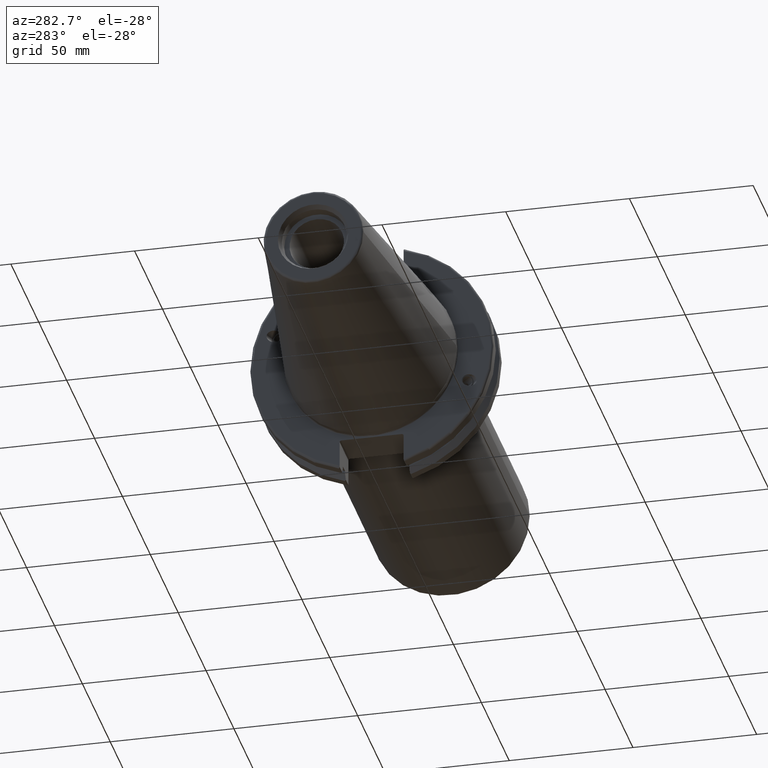
[diagram: clean part render]
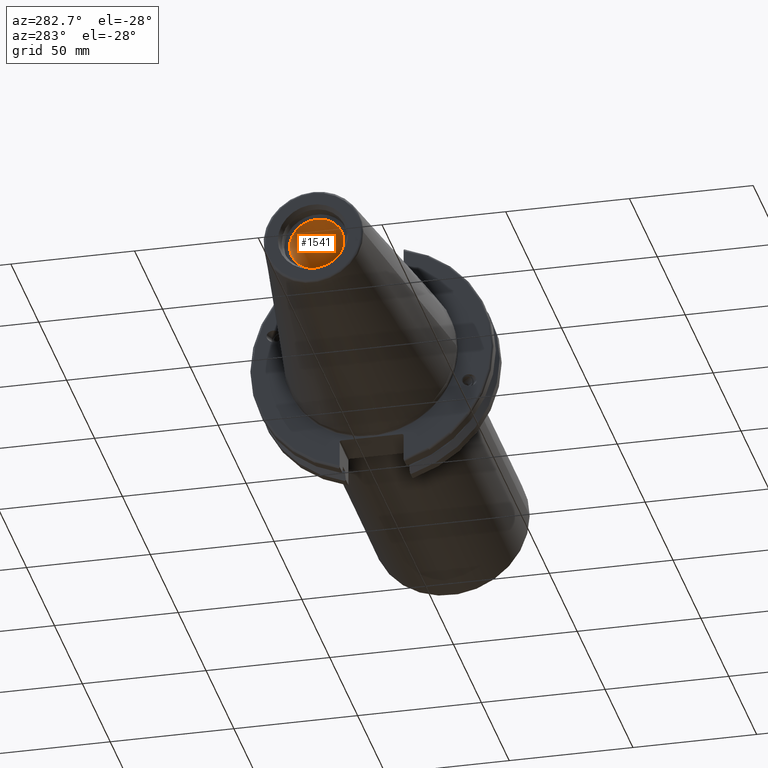
[diagram: same view with one face highlighted and labeled with its STEP entity id]
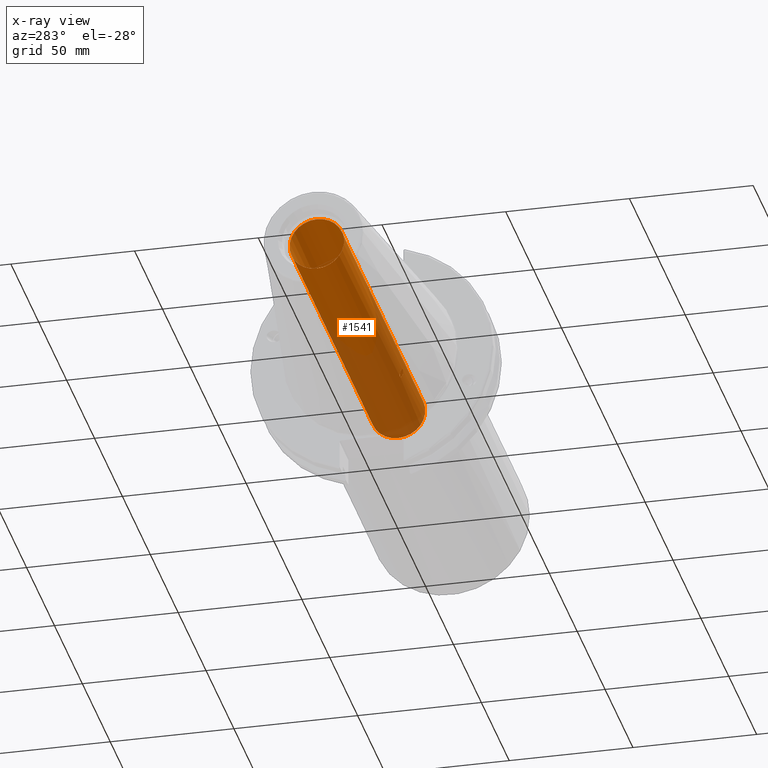
[diagram: x-ray of the same camera — body ghosted, the highlighted face saturated]
A machine part, auxiliary view. The second image highlights one B-rep face of the part: STEP entity #1541.
The next image is the same camera in x-ray: the body ghosted, the highlighted face saturated — about 46% of this face is hidden behind the body in this view.
In plain terms, the highlighted cylindrical surface (bore or boss wall) has radius 10.9855 mm, axis along (-1, 0, 0).
Its self-contained STEP definition (entity closure, byte-faithful):
#64=FACE_BOUND('',#234,.T.);
#65=FACE_BOUND('',#235,.T.);
#136=FACE_OUTER_BOUND('',#233,.T.);
#233=EDGE_LOOP('',(#1114,#1115,#1116,#1117));
#234=EDGE_LOOP('',(#1118,#1119));
#235=EDGE_LOOP('',(#1120,#1121));
#333=B_SPLINE_CURVE_WITH_KNOTS('',3,(#2489,#2490,#2491,#2492,#2493,#2494,
#2495,#2496,#2497,#2498,#2499,#2500,#2501,#2502,#2503,#2504,#2505,#2506,
#2507,#2508,#2509,#2510,#2511,#2512,#2513,#2514),.UNSPECIFIED.,.F.,.F.,
(4,2,2,2,2,2,2,2,2,2,2,2,4),(0.,0.0611574273332734,0.122314854666547,0.183471284102351,
0.244627713538154,0.305784142973958,0.366940572409762,0.428097999743036,
0.489255427076309,0.550412854409586,0.611570281742862,0.672726711178666,
0.73388314061447),.UNSPECIFIED.);
#334=B_SPLINE_CURVE_WITH_KNOTS('',3,(#2515,#2516,#2517,#2518,#2519,#2520,
#2521,#2522,#2523,#2524),.UNSPECIFIED.,.F.,.F.,(4,2,2,2,4),(0.73388314061447,
0.795039570050273,0.856195999486077,0.917353426819354,0.97851085415263),
 .UNSPECIFIED.);
#335=B_SPLINE_CURVE_WITH_KNOTS('',3,(#2527,#2528,#2529,#2530,#2531,#2532,
#2533,#2534,#2535,#2536,#2537,#2538,#2539,#2540,#2541,#2542,#2543,#2544,
#2545,#2546,#2547,#2548,#2549,#2550,#2551,#2552),.UNSPECIFIED.,.F.,.F.,
(4,2,2,2,2,2,2,2,2,2,2,2,4),(0.,0.0611574273332734,0.122314854666547,0.183471284102351,
0.244627713538154,0.305784142973958,0.366940572409762,0.428097999743036,
0.489255427076309,0.550412854409586,0.611570281742862,0.672726711178666,
0.733883140614469),.UNSPECIFIED.);
#336=B_SPLINE_CURVE_WITH_KNOTS('',3,(#2553,#2554,#2555,#2556,#2557,#2558,
#2559,#2560,#2561,#2562),.UNSPECIFIED.,.F.,.F.,(4,2,2,2,4),(0.733883140614469,
0.795039570050273,0.856195999486077,0.917353426819354,0.97851085415263),
 .UNSPECIFIED.);
#388=LINE('',#2485,#480);
#480=VECTOR('',#1909,10.9855);
#579=CIRCLE('',#1678,10.9855);
#580=CIRCLE('',#1679,10.9855);
#672=VERTEX_POINT('',#2482);
#673=VERTEX_POINT('',#2484);
#674=VERTEX_POINT('',#2487);
#675=VERTEX_POINT('',#2488);
#676=VERTEX_POINT('',#2525);
#677=VERTEX_POINT('',#2526);
#843=EDGE_CURVE('',#672,#672,#579,.T.);
#844=EDGE_CURVE('',#672,#673,#388,.T.);
#845=EDGE_CURVE('',#673,#673,#580,.T.);
#846=EDGE_CURVE('',#674,#675,#333,.T.);
#847=EDGE_CURVE('',#675,#674,#334,.T.);
#848=EDGE_CURVE('',#676,#677,#335,.T.);
#849=EDGE_CURVE('',#677,#676,#336,.T.);
#1114=ORIENTED_EDGE('',*,*,#843,.F.);
#1115=ORIENTED_EDGE('',*,*,#844,.T.);
#1116=ORIENTED_EDGE('',*,*,#845,.F.);
#1117=ORIENTED_EDGE('',*,*,#844,.F.);
#1118=ORIENTED_EDGE('',*,*,#846,.F.);
#1119=ORIENTED_EDGE('',*,*,#847,.F.);
#1120=ORIENTED_EDGE('',*,*,#848,.F.);
#1121=ORIENTED_EDGE('',*,*,#849,.F.);
#1503=CYLINDRICAL_SURFACE('',#1677,10.9855);
#1541=ADVANCED_FACE('',(#136,#64,#65),#1503,.F.);
#1677=AXIS2_PLACEMENT_3D('',#2481,#1905,#1906);
#1678=AXIS2_PLACEMENT_3D('',#2483,#1907,#1908);
#1679=AXIS2_PLACEMENT_3D('',#2486,#1910,#1911);
#1905=DIRECTION('center_axis',(-1.,0.,0.));
#1906=DIRECTION('ref_axis',(0.,0.,1.));
#1907=DIRECTION('center_axis',(1.,0.,0.));
#1908=DIRECTION('ref_axis',(0.,0.,1.));
#1909=DIRECTION('',(1.,0.,0.));
#1910=DIRECTION('center_axis',(-1.,0.,0.));
#1911=DIRECTION('ref_axis',(0.,0.,1.));
#2481=CARTESIAN_POINT('Origin',(186.792491205684,0.,0.));
#2482=CARTESIAN_POINT('',(-95.25,1.34533574120333E-15,-10.9855));
#2483=CARTESIAN_POINT('Origin',(-95.25,0.,0.));
#2484=CARTESIAN_POINT('',(50.8,-1.34533574120333E-15,-10.9855));
#2485=CARTESIAN_POINT('',(186.792491205684,-1.34533574120333E-15,-10.9855));
#2486=CARTESIAN_POINT('Origin',(50.8,0.,0.));
#2487=CARTESIAN_POINT('',(11.1341,-10.7644060814244,-2.19289123400911));
#2488=CARTESIAN_POINT('',(9.5131,-10.3229932856436,-3.75726228450413));
#2489=CARTESIAN_POINT('Ctrl Pts',(11.1341,-10.7644060814244,-2.19289123400911));
#2490=CARTESIAN_POINT('Ctrl Pts',(11.3379580911109,-10.7644060814244,-2.19289123400911));
#2491=CARTESIAN_POINT('Ctrl Pts',(11.5551976425658,-10.7563992112981,-2.23339769026783));
#2492=CARTESIAN_POINT('Ctrl Pts',(11.9544884896352,-10.7211890589831,-2.39672575217717));
#2493=CARTESIAN_POINT('Ctrl Pts',(12.1365656702174,-10.6936730645534,-2.51941648519806));
#2494=CARTESIAN_POINT('Ctrl Pts',(12.4240721687679,-10.6236838882786,-2.79990053351313));
#2495=CARTESIAN_POINT('Ctrl Pts',(12.5487766094346,-10.5764720644486,-2.97648040123254));
#2496=CARTESIAN_POINT('Ctrl Pts',(12.7142987049788,-10.4611409987277,-3.35942344936976));
#2497=CARTESIAN_POINT('Ctrl Pts',(12.7551,-10.3927157215133,-3.56570146632267));
#2498=CARTESIAN_POINT('Ctrl Pts',(12.7551,-10.2532708497739,-3.9488231026856));
#2499=CARTESIAN_POINT('Ctrl Pts',(12.7142987049788,-10.1730946997047,-4.15082415169272));
#2500=CARTESIAN_POINT('Ctrl Pts',(12.5487766094346,-10.015292375161,-4.51830892580662));
#2501=CARTESIAN_POINT('Ctrl Pts',(12.4240721687679,-9.93795537936543,-4.68392412762843));
#2502=CARTESIAN_POINT('Ctrl Pts',(12.1365656702174,-9.81127852795753,-4.94377554954527));
#2503=CARTESIAN_POINT('Ctrl Pts',(11.9544884896352,-9.75349291957811,-5.05544904408574));
#2504=CARTESIAN_POINT('Ctrl Pts',(11.5551976425658,-9.67548020659099,-5.20319824796008));
#2505=CARTESIAN_POINT('Ctrl Pts',(11.3379580911109,-9.65557677676255,-5.23937471059702));
#2506=CARTESIAN_POINT('Ctrl Pts',(10.9302419088891,-9.65557677676255,-5.23937471059702));
#2507=CARTESIAN_POINT('Ctrl Pts',(10.7130023574342,-9.67548020659099,-5.20319824796008));
#2508=CARTESIAN_POINT('Ctrl Pts',(10.3137115103648,-9.75349291957811,-5.05544904408574));
#2509=CARTESIAN_POINT('Ctrl Pts',(10.1316343297826,-9.81127852795752,-4.94377554954529));
#2510=CARTESIAN_POINT('Ctrl Pts',(9.84412783123202,-9.93795537936543,-4.68392412762844));
#2511=CARTESIAN_POINT('Ctrl Pts',(9.71942339056537,-10.015292375161,-4.51830892580662));
#2512=CARTESIAN_POINT('Ctrl Pts',(9.55390129502121,-10.1730946997047,-4.15082415169272));
#2513=CARTESIAN_POINT('Ctrl Pts',(9.5131,-10.2532708497739,-3.9488231026856));
#2514=CARTESIAN_POINT('Ctrl Pts',(9.5131,-10.3229932856436,-3.75726228450413));
#2515=CARTESIAN_POINT('Ctrl Pts',(9.5131,-10.3229932856436,-3.75726228450413));
#2516=CARTESIAN_POINT('Ctrl Pts',(9.5131,-10.3927157215133,-3.56570146632267));
#2517=CARTESIAN_POINT('Ctrl Pts',(9.55390129502121,-10.4611409987277,-3.35942344936976));
#2518=CARTESIAN_POINT('Ctrl Pts',(9.71942339056537,-10.5764720644486,-2.97648040123254));
#2519=CARTESIAN_POINT('Ctrl Pts',(9.84412783123202,-10.6236838882786,-2.79990053351312));
#2520=CARTESIAN_POINT('Ctrl Pts',(10.1316343297826,-10.6936730645534,-2.51941648519804));
#2521=CARTESIAN_POINT('Ctrl Pts',(10.3137115103648,-10.7211890589831,-2.39672575217717));
#2522=CARTESIAN_POINT('Ctrl Pts',(10.7130023574342,-10.7563992112981,-2.23339769026782));
#2523=CARTESIAN_POINT('Ctrl Pts',(10.9302419088891,-10.7644060814244,-2.19289123400911));
#2524=CARTESIAN_POINT('Ctrl Pts',(11.1341,-10.7644060814244,-2.19289123400911));
#2525=CARTESIAN_POINT('',(11.1341,10.7644060814244,2.19289123400911));
#2526=CARTESIAN_POINT('',(9.5131,10.3229932856436,3.75726228450413));
#2527=CARTESIAN_POINT('Ctrl Pts',(11.1341,10.7644060814244,2.19289123400911));
#2528=CARTESIAN_POINT('Ctrl Pts',(11.3379580911109,10.7644060814244,2.19289123400911));
#2529=CARTESIAN_POINT('Ctrl Pts',(11.5551976425658,10.7563992112981,2.23339769026783));
#2530=CARTESIAN_POINT('Ctrl Pts',(11.9544884896352,10.7211890589831,2.39672575217717));
#2531=CARTESIAN_POINT('Ctrl Pts',(12.1365656702174,10.6936730645534,2.51941648519806));
#2532=CARTESIAN_POINT('Ctrl Pts',(12.4240721687679,10.6236838882786,2.79990053351313));
#2533=CARTESIAN_POINT('Ctrl Pts',(12.5487766094346,10.5764720644486,2.97648040123254));
#2534=CARTESIAN_POINT('Ctrl Pts',(12.7142987049788,10.4611409987277,3.35942344936976));
#2535=CARTESIAN_POINT('Ctrl Pts',(12.7551,10.3927157215133,3.56570146632267));
#2536=CARTESIAN_POINT('Ctrl Pts',(12.7551,10.2532708497739,3.9488231026856));
#2537=CARTESIAN_POINT('Ctrl Pts',(12.7142987049788,10.1730946997047,4.15082415169272));
#2538=CARTESIAN_POINT('Ctrl Pts',(12.5487766094346,10.015292375161,4.51830892580662));
#2539=CARTESIAN_POINT('Ctrl Pts',(12.4240721687679,9.93795537936544,4.68392412762843));
#2540=CARTESIAN_POINT('Ctrl Pts',(12.1365656702174,9.81127852795753,4.94377554954527));
#2541=CARTESIAN_POINT('Ctrl Pts',(11.9544884896352,9.75349291957811,5.05544904408574));
#2542=CARTESIAN_POINT('Ctrl Pts',(11.5551976425658,9.67548020659099,5.20319824796008));
#2543=CARTESIAN_POINT('Ctrl Pts',(11.3379580911109,9.65557677676255,5.23937471059702));
#2544=CARTESIAN_POINT('Ctrl Pts',(10.9302419088891,9.65557677676255,5.23937471059702));
#2545=CARTESIAN_POINT('Ctrl Pts',(10.7130023574342,9.67548020659099,5.20319824796008));
#2546=CARTESIAN_POINT('Ctrl Pts',(10.3137115103648,9.75349291957811,5.05544904408574));
#2547=CARTESIAN_POINT('Ctrl Pts',(10.1316343297826,9.81127852795752,4.94377554954529));
#2548=CARTESIAN_POINT('Ctrl Pts',(9.84412783123202,9.93795537936543,4.68392412762844));
#2549=CARTESIAN_POINT('Ctrl Pts',(9.71942339056537,10.015292375161,4.51830892580662));
#2550=CARTESIAN_POINT('Ctrl Pts',(9.55390129502121,10.1730946997047,4.15082415169272));
#2551=CARTESIAN_POINT('Ctrl Pts',(9.5131,10.2532708497739,3.9488231026856));
#2552=CARTESIAN_POINT('Ctrl Pts',(9.5131,10.3229932856436,3.75726228450413));
#2553=CARTESIAN_POINT('Ctrl Pts',(9.5131,10.3229932856436,3.75726228450413));
#2554=CARTESIAN_POINT('Ctrl Pts',(9.5131,10.3927157215133,3.56570146632267));
#2555=CARTESIAN_POINT('Ctrl Pts',(9.55390129502121,10.4611409987277,3.35942344936976));
#2556=CARTESIAN_POINT('Ctrl Pts',(9.71942339056537,10.5764720644486,2.97648040123254));
#2557=CARTESIAN_POINT('Ctrl Pts',(9.84412783123202,10.6236838882786,2.79990053351312));
#2558=CARTESIAN_POINT('Ctrl Pts',(10.1316343297826,10.6936730645534,2.51941648519804));
#2559=CARTESIAN_POINT('Ctrl Pts',(10.3137115103648,10.7211890589831,2.39672575217717));
#2560=CARTESIAN_POINT('Ctrl Pts',(10.7130023574342,10.7563992112981,2.23339769026782));
#2561=CARTESIAN_POINT('Ctrl Pts',(10.9302419088891,10.7644060814244,2.19289123400911));
#2562=CARTESIAN_POINT('Ctrl Pts',(11.1341,10.7644060814244,2.19289123400911));